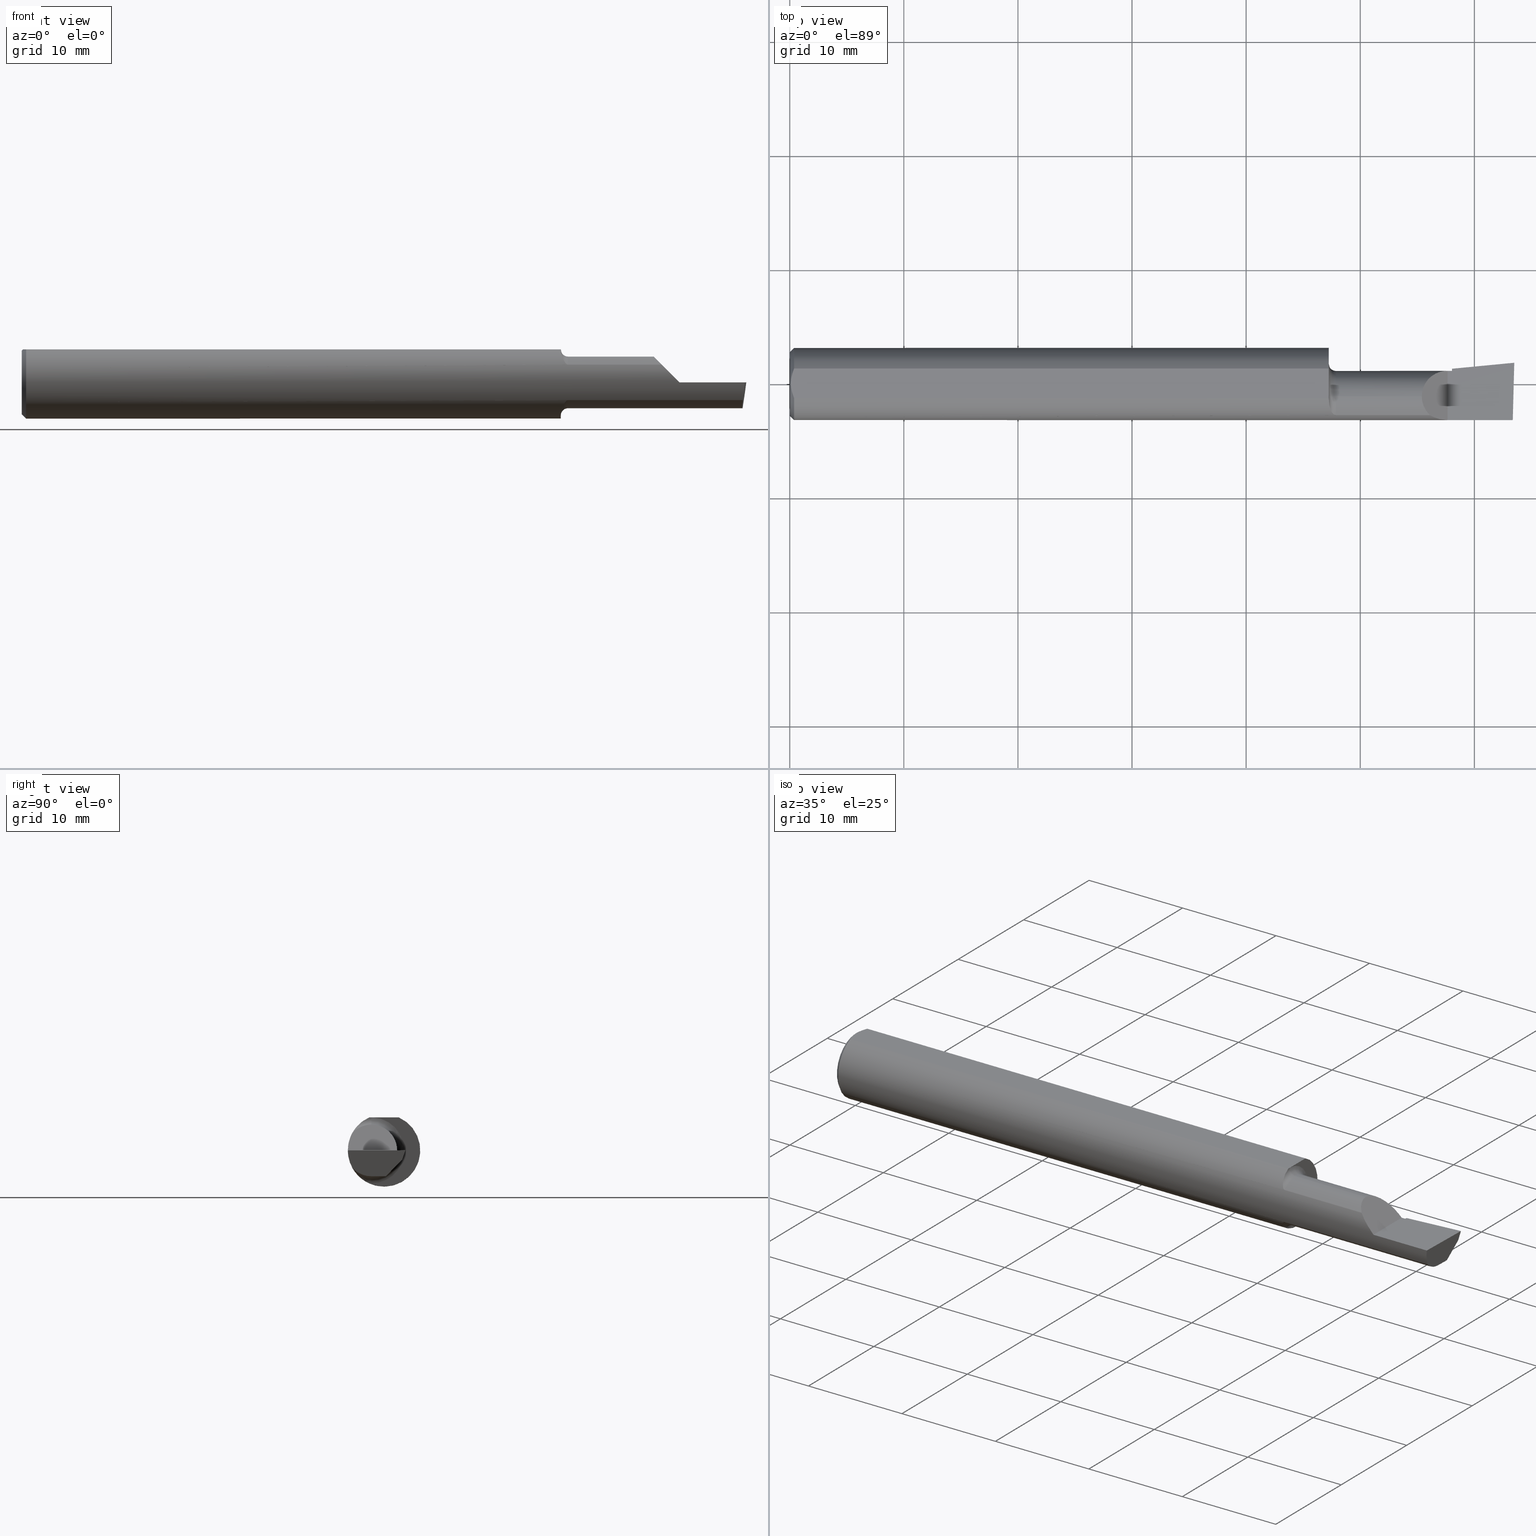
[diagram: canonical four-view strip — front | top / right | iso, engineering-drawing reading convention]
A machine part, canonical four-view strip (front | top / right | iso — engineering-drawing reading convention). The complete STEP part file that produces these views, byte-faithful:
ISO-10303-21;
HEADER;
FILE_DESCRIPTION (( 'STEP AP214' ),
    '1' );
FILE_NAME ('B200600.STEP',
    '2019-07-25T18:23:04',
    ( '' ),
    ( '' ),
    'SwSTEP 2.0',
    'SolidWorks 2018',
    '' );
FILE_SCHEMA (( 'AUTOMOTIVE_DESIGN' ));
ENDSEC;

DATA;
#1 = ADVANCED_FACE ( 'NONE', ( #624 ), #372, .T. ) ;
#2 = DIRECTION ( 'NONE',  ( 0.0000000000000000000, 0.0000000000000000000, 1.000000000000000000 ) ) ;
#3 = EDGE_LOOP ( 'NONE', ( #512, #264, #67, #202, #160 ) ) ;
#4 = ORIENTED_EDGE ( 'NONE', *, *, #208, .F. ) ;
#5 = EDGE_CURVE ( 'NONE', #201, #537, #477, .T. ) ;
#6 = AXIS2_PLACEMENT_3D ( 'NONE', #583, #472, #366 ) ;
#7 = LINE ( 'NONE', #77, #170 ) ;
#8 = CARTESIAN_POINT ( 'NONE',  ( 1.872671163500630787, -0.1022596512740081426, 0.07170602318513177864 ) ) ;
#9 = EDGE_LOOP ( 'NONE', ( #272, #417, #402, #261, #117 ) ) ;
#10 = CARTESIAN_POINT ( 'NONE',  ( 1.860398955714088309, -0.06414339738381671929, 0.1073503907433057680 ) ) ;
#11 = EDGE_CURVE ( 'NONE', #537, #701, #73, .T. ) ;
#12 = ORIENTED_EDGE ( 'NONE', *, *, #214, .T. ) ;
#13 = DIRECTION ( 'NONE',  ( -1.000000000000000000, -0.0000000000000000000, -0.0000000000000000000 ) ) ;
#14 = EDGE_LOOP ( 'NONE', ( #129, #27, #547, #354 ) ) ;
#15 = FACE_OUTER_BOUND ( 'NONE', #400, .T. ) ;
#16 = ADVANCED_FACE ( 'NONE', ( #384 ), #110, .F. ) ;
#17 = PLANE ( 'NONE',  #625 ) ;
#18 = EDGE_CURVE ( 'NONE', #179, #134, #463, .T. ) ;
#19 =( CONVERSION_BASED_UNIT ( 'INCH', #152 ) LENGTH_UNIT ( ) NAMED_UNIT ( #616 ) );
#20 = ADVANCED_FACE ( 'NONE', ( #577 ), #621, .F. ) ;
#21 = PLANE ( 'NONE',  #197 ) ;
#22 = ORIENTED_EDGE ( 'NONE', *, *, #81, .T. ) ;
#23 = PRODUCT_DEFINITION_SHAPE ( 'NONE', 'NONE',  #499 ) ;
#24 = DIRECTION ( 'NONE',  ( 0.0000000000000000000, 0.0000000000000000000, 1.000000000000000000 ) ) ;
#25 = FACE_OUTER_BOUND ( 'NONE', #681, .T. ) ;
#26 = AXIS2_PLACEMENT_3D ( 'NONE', #498, #722, #149 ) ;
#27 = ORIENTED_EDGE ( 'NONE', *, *, #428, .F. ) ;
#28 = CARTESIAN_POINT ( 'NONE',  ( 0.0000000000000000000, 0.05124158467494922820, 0.1138500000000000345 ) ) ;
#29 = CARTESIAN_POINT ( 'NONE',  ( 0.01499999999999999424, 0.0000000000000000000, -0.1248500000000000026 ) ) ;
#30 = EDGE_CURVE ( 'NONE', #70, #323, #210, .T. ) ;
#31 = CARTESIAN_POINT ( 'NONE',  ( 2.180849999999999511, -0.04399999999999999745, 0.08914999999999995151 ) ) ;
#32 = AXIS2_PLACEMENT_3D ( 'NONE', #427, #695, #478 ) ;
#33 = VERTEX_POINT ( 'NONE', #706 ) ;
#34 = CARTESIAN_POINT ( 'NONE',  ( 1.860001800064804423, -0.04399999999999999745, 0.1138500000000000345 ) ) ;
#35 = CARTESIAN_POINT ( 'NONE',  ( 2.180849999999999067, 0.008222860914438554630, 0.08914999999999995151 ) ) ;
#36 = SURFACE_STYLE_FILL_AREA ( #395 ) ;
#37 = CARTESIAN_POINT ( 'NONE',  ( 0.0000000000000000000, -0.05124158467494919350, 0.1138500000000000345 ) ) ;
#38 = CARTESIAN_POINT ( 'NONE',  ( 2.208790356734260829, -0.1088159090909091575, 0.06120964326573868214 ) ) ;
#39 = DIRECTION ( 'NONE',  ( -0.09584575252020946512, 0.9953961983671801850, 8.497722210657548999E-17 ) ) ;
#40 = DIRECTION ( 'NONE',  ( -0.1053106618241858444, -0.6976485211320166968, -0.7086580314005210823 ) ) ;
#41 = PLANE ( 'NONE',  #154 ) ;
#42 = CARTESIAN_POINT ( 'NONE',  ( 1.885000000000000009, -0.04399999999999999745, 0.0000000000000000000 ) ) ;
#43 = CARTESIAN_POINT ( 'NONE',  ( 1.860001800064805089, -0.04262160478489884080, 0.1138500000000000761 ) ) ;
#44 = LINE ( 'NONE', #448, #335 ) ;
#45 = DIRECTION ( 'NONE',  ( 0.0000000000000000000, 0.0000000000000000000, 1.000000000000000000 ) ) ;
#46 = LINE ( 'NONE', #166, #505 ) ;
#47 = APPLICATION_CONTEXT ( 'automotive_design' ) ;
#48 = AXIS2_PLACEMENT_3D ( 'NONE', #652, #657, #262 ) ;
#49 = CARTESIAN_POINT ( 'NONE',  ( 2.285000000000000142, -0.007196927245378875737, -0.08914999999999999314 ) ) ;
#50 = DIRECTION ( 'NONE',  ( 0.06658005426110483183, -0.6914603011188220627, -0.7193398003386550776 ) ) ;
#51 = CARTESIAN_POINT ( 'NONE',  ( 2.270000000000000018, 0.04514999999999985691, 2.816687638038912303E-17 ) ) ;
#52 = SURFACE_STYLE_USAGE ( .BOTH. , #220 ) ;
#53 = ORIENTED_EDGE ( 'NONE', *, *, #231, .F. ) ;
#54 = ORIENTED_EDGE ( 'NONE', *, *, #415, .F. ) ;
#55 = ORIENTED_EDGE ( 'NONE', *, *, #441, .T. ) ;
#56 = LINE ( 'NONE', #601, #111 ) ;
#57 =( NAMED_UNIT ( * ) PLANE_ANGLE_UNIT ( ) SI_UNIT ( $, .RADIAN. ) );
#58 = LINE ( 'NONE', #450, #615 ) ;
#59 = DIRECTION ( 'NONE',  ( -1.000000000000000000, -0.0000000000000000000, -0.0000000000000000000 ) ) ;
#60 = DIRECTION ( 'NONE',  ( 1.000000000000000000, 0.0000000000000000000, 0.0000000000000000000 ) ) ;
#61 = AXIS2_PLACEMENT_3D ( 'NONE', #420, #80, #479 ) ;
#62 = DIRECTION ( 'NONE',  ( 0.0000000000000000000, -1.000000000000000000, 1.464745492742491612E-16 ) ) ;
#63 = CARTESIAN_POINT ( 'NONE',  ( 0.01499999999999999424, 0.0000000000000000000, 0.0000000000000000000 ) ) ;
#64 = EDGE_CURVE ( 'NONE', #466, #461, #153, .T. ) ;
#65 = ORIENTED_EDGE ( 'NONE', *, *, #415, .T. ) ;
#66 = CARTESIAN_POINT ( 'NONE',  ( 0.004000000000000278506, 1.406179932551309785E-17, 0.1138500000000000345 ) ) ;
#67 = ORIENTED_EDGE ( 'NONE', *, *, #630, .F. ) ;
#68 = CARTESIAN_POINT ( 'NONE',  ( 0.01168016970778672399, -0.04315282601121772643, 0.1138500000000000206 ) ) ;
#69 = CARTESIAN_POINT ( 'NONE',  ( 1.866367198475050726, -0.09170680217278601165, 0.08501141308632326199 ) ) ;
#70 = VERTEX_POINT ( 'NONE', #38 ) ;
#71 = EDGE_LOOP ( 'NONE', ( #421, #276, #651, #285, #54, #658, #628 ) ) ;
#72 = AXIS2_PLACEMENT_3D ( 'NONE', #212, #207, #606 ) ;
#73 = CIRCLE ( 'NONE', #548, 0.08914999999999999314 ) ;
#74 = ADVANCED_FACE ( 'NONE', ( #337 ), #88, .F. ) ;
#75 = CARTESIAN_POINT ( 'NONE',  ( 0.01499999999999999424, 0.0000000000000000000, 0.0000000000000000000 ) ) ;
#76 = VERTEX_POINT ( 'NONE', #87 ) ;
#77 = CARTESIAN_POINT ( 'NONE',  ( 2.284439022446591583, 0.04256520776931346783, -0.03200000000000000067 ) ) ;
#78 = VERTEX_POINT ( 'NONE', #637 ) ;
#79 = VERTEX_POINT ( 'NONE', #321 ) ;
#80 = DIRECTION ( 'NONE',  ( -0.0000000000000000000, 1.000000000000000000, 1.224646799147353207E-16 ) ) ;
#81 = EDGE_CURVE ( 'NONE', #344, #233, #348, .T. ) ;
#82 = DIRECTION ( 'NONE',  ( -1.000000000000000000, 0.0000000000000000000, -0.0000000000000000000 ) ) ;
#83 = B_SPLINE_CURVE_WITH_KNOTS ( 'NONE', 3,
 ( #49, #100, #98, #155 ),
 .UNSPECIFIED., .F., .F.,
 ( 4, 4 ),
 ( 0.01374225265540627433, 0.01385046277627812600 ),
 .UNSPECIFIED. ) ;
#84 = DIRECTION ( 'NONE',  ( -1.000000000000000000, 0.0000000000000000000, 4.194046792260684025E-16 ) ) ;
#85 = CARTESIAN_POINT ( 'NONE',  ( 2.084999999999999964, -0.1088159090909091853, -0.06120964326573867520 ) ) ;
#86 = ORIENTED_EDGE ( 'NONE', *, *, #318, .F. ) ;
#87 = CARTESIAN_POINT ( 'NONE',  ( 2.285000000000000142, -0.007196927245378875737, -0.08914999999999999314 ) ) ;
#88 = TOROIDAL_SURFACE ( 'NONE', #364, 0.1141499999999999460, 0.02500000000000007425 ) ;
#89 = CARTESIAN_POINT ( 'NONE',  ( 2.270000000000000018, 0.04514999999999985691, 2.816687638038912303E-17 ) ) ;
#90 = DIRECTION ( 'NONE',  ( -1.000000000000000000, -0.0000000000000000000, -0.0000000000000000000 ) ) ;
#91 = EDGE_LOOP ( 'NONE', ( #360, #132, #274, #640, #671, #296 ) ) ;
#92 = DIRECTION ( 'NONE',  ( -0.7071067811865507924, 0.0000000000000000000, 0.7071067811865443531 ) ) ;
#93 = EDGE_LOOP ( 'NONE', ( #619, #311, #392, #293, #473, #523, #408, #304, #314, #435, #4, #575 ) ) ;
#94 = FACE_OUTER_BOUND ( 'NONE', #572, .T. ) ;
#95 = EDGE_CURVE ( 'NONE', #633, #689, #326, .T. ) ;
#96 = CONICAL_SURFACE ( 'NONE', #146, 0.1248500000000000026, 0.7853981633974602694 ) ;
#97 = VECTOR ( 'NONE', #546, 39.37007874015748143 ) ;
#98 = CARTESIAN_POINT ( 'NONE',  ( 2.287753291311064086, -0.006506358606457698576, -0.08914999999999999314 ) ) ;
#99 = EDGE_LOOP ( 'NONE', ( #442, #493 ) ) ;
#100 = CARTESIAN_POINT ( 'NONE',  ( 2.286376142476870488, -0.006849672022903474482, -0.08914999999999999314 ) ) ;
#101 = EDGE_LOOP ( 'NONE', ( #367, #587, #244, #65, #12, #119 ) ) ;
#102 = DIRECTION ( 'NONE',  ( 1.000000000000000000, 0.0000000000000000000, 0.0000000000000000000 ) ) ;
#103 = CARTESIAN_POINT ( 'NONE',  ( 2.285000000000000142, 0.03673923312416821352, -0.05275760512668437735 ) ) ;
#104 = LINE ( 'NONE', #218, #534 ) ;
#105 = EDGE_CURVE ( 'NONE', #33, #78, #279, .T. ) ;
#106 =( NAMED_UNIT ( * ) SI_UNIT ( $, .STERADIAN. ) SOLID_ANGLE_UNIT ( ) );
#107 = STYLED_ITEM ( 'NONE', ( #719 ), #521 ) ;
#108 = CARTESIAN_POINT ( 'NONE',  ( 1.859999999999999876, 0.05124158467494921432, 0.1138500000000000206 ) ) ;
#109 = CARTESIAN_POINT ( 'NONE',  ( 0.0000000000000000000, 0.0000000000000000000, 0.0000000000000000000 ) ) ;
#110 = PLANE ( 'NONE',  #196 ) ;
#111 = VECTOR ( 'NONE', #327, 39.37007874015748854 ) ;
#112 = AXIS2_PLACEMENT_3D ( 'NONE', #42, #339, #211 ) ;
#113 = DIRECTION ( 'NONE',  ( 1.000000000000000000, 0.0000000000000000000, 0.0000000000000000000 ) ) ;
#114 = DIRECTION ( 'NONE',  ( -1.000000000000000000, -0.0000000000000000000, -0.0000000000000000000 ) ) ;
#115 = EDGE_CURVE ( 'NONE', #323, #201, #724, .T. ) ;
#116 = ORIENTED_EDGE ( 'NONE', *, *, #526, .F. ) ;
#117 = ORIENTED_EDGE ( 'NONE', *, *, #622, .F. ) ;
#118 = LINE ( 'NONE', #632, #163 ) ;
#119 = ORIENTED_EDGE ( 'NONE', *, *, #638, .F. ) ;
#120 = CARTESIAN_POINT ( 'NONE',  ( 2.270000000000000018, -0.1248500000000000165, 2.816687638038912303E-17 ) ) ;
#121 = CARTESIAN_POINT ( 'NONE',  ( 1.859999999999999876, 0.07014999999999994851, 0.0000000000000000000 ) ) ;
#122 = ORIENTED_EDGE ( 'NONE', *, *, #151, .T. ) ;
#123 = EDGE_CURVE ( 'NONE', #701, #224, #559, .T. ) ;
#124 = ORIENTED_EDGE ( 'NONE', *, *, #175, .F. ) ;
#125 = CARTESIAN_POINT ( 'NONE',  ( 2.491543817870046862, -0.2497785670779703315, -6.474963748791635999E-17 ) ) ;
#126 = FACE_OUTER_BOUND ( 'NONE', #101, .T. ) ;
#127 = EDGE_CURVE ( 'NONE', #238, #192, #697, .T. ) ;
#128 = SURFACE_SIDE_STYLE ('',( #307 ) ) ;
#129 = ORIENTED_EDGE ( 'NONE', *, *, #30, .F. ) ;
#130 = EDGE_LOOP ( 'NONE', ( #413, #22, #194, #620, #225 ) ) ;
#131 = AXIS2_PLACEMENT_3D ( 'NONE', #677, #573, #306 ) ;
#132 = ORIENTED_EDGE ( 'NONE', *, *, #535, .F. ) ;
#133 = CIRCLE ( 'NONE', #554, 0.1141499999999999460 ) ;
#134 = VERTEX_POINT ( 'NONE', #29 ) ;
#135 = DIRECTION ( 'NONE',  ( 0.7071067811865390240, 8.659560562355036396E-17, 0.7071067811865560104 ) ) ;
#136 = EDGE_CURVE ( 'NONE', #564, #238, #516, .T. ) ;
#137 = CARTESIAN_POINT ( 'NONE',  ( 2.285000000000000142, 0.05244785463753253579, 9.802155642165059035E-16 ) ) ;
#138 = PRESENTATION_LAYER_ASSIGNMENT (  '', '', ( #107 ) ) ;
#139 = CARTESIAN_POINT ( 'NONE',  ( 1.859999999999999876, -0.03572957074874710121, 0.1138500000000000345 ) ) ;
#140 = VERTEX_POINT ( 'NONE', #137 ) ;
#141 = CARTESIAN_POINT ( 'NONE',  ( 1.885000000000000009, -0.1088159090909094073, -0.06120964326573841152 ) ) ;
#142 = VERTEX_POINT ( 'NONE', #608 ) ;
#143 = CARTESIAN_POINT ( 'NONE',  ( 2.285000000000000142, -0.2500000000000000555, 2.187580619199813988E-17 ) ) ;
#144 = CARTESIAN_POINT ( 'NONE',  ( 4.111069666048746882E-31, -0.1248499999999999888, 9.802154982235641300E-16 ) ) ;
#145 = CARTESIAN_POINT ( 'NONE',  ( 1.878584160803692171, -0.1072016464447192174, -0.06400548237000602825 ) ) ;
#146 = AXIS2_PLACEMENT_3D ( 'NONE', #63, #171, #618 ) ;
#147 = CARTESIAN_POINT ( 'NONE',  ( 2.294677963759321315, -0.06377026344359248977, -0.08914999999999999314 ) ) ;
#148 = ORIENTED_EDGE ( 'NONE', *, *, #241, .F. ) ;
#149 = DIRECTION ( 'NONE',  ( 0.0000000000000000000, 0.0000000000000000000, -1.000000000000000000 ) ) ;
#150 = CONICAL_SURFACE ( 'NONE', #578, 0.09644785463752904298, 0.09599310885968871665 ) ;
#151 = EDGE_CURVE ( 'NONE', #140, #468, #104, .T. ) ;
#152 = LENGTH_MEASURE_WITH_UNIT ( LENGTH_MEASURE( 0.02539999999999999897 ), #190 );
#153 = CIRCLE ( 'NONE', #387, 0.02500000000000007425 ) ;
#154 = AXIS2_PLACEMENT_3D ( 'NONE', #712, #437, #92 ) ;
#155 = CARTESIAN_POINT ( 'NONE',  ( 2.289131370391417342, -0.006166688875843243448, -0.08914999999999999314 ) ) ;
#156 = CARTESIAN_POINT ( 'NONE',  ( 2.284999999999997478, 0.03673923312417560344, -0.03806087642519848796 ) ) ;
#157 = ORIENTED_EDGE ( 'NONE', *, *, #127, .T. ) ;
#158 = ORIENTED_EDGE ( 'NONE', *, *, #5, .T. ) ;
#159 = DIRECTION ( 'NONE',  ( 0.0000000000000000000, 0.0000000000000000000, -1.000000000000000000 ) ) ;
#160 = ORIENTED_EDGE ( 'NONE', *, *, #167, .F. ) ;
#161 = FACE_OUTER_BOUND ( 'NONE', #482, .T. ) ;
#162 = PRODUCT_DEFINITION_CONTEXT ( 'detailed design', #664, 'design' ) ;
#163 = VECTOR ( 'NONE', #636, 39.37007874015748854 ) ;
#164 = EDGE_CURVE ( 'NONE', #305, #76, #257, .T. ) ;
#165 = MECHANICAL_DESIGN_GEOMETRIC_PRESENTATION_REPRESENTATION (  '', ( #107 ), #517 ) ;
#166 = CARTESIAN_POINT ( 'NONE',  ( 2.270000000000000018, -0.2500000000000000555, 2.816687638038912303E-17 ) ) ;
#167 = EDGE_CURVE ( 'NONE', #224, #238, #634, .T. ) ;
#168 = ORIENTED_EDGE ( 'NONE', *, *, #585, .T. ) ;
#169 = CARTESIAN_POINT ( 'NONE',  ( 0.01499999999999999424, 0.05124158467494922820, 0.1138500000000000345 ) ) ;
#170 = VECTOR ( 'NONE', #424, 39.37007874015748854 ) ;
#171 = DIRECTION ( 'NONE',  ( 1.000000000000000000, 0.0000000000000000000, 0.0000000000000000000 ) ) ;
#172 = ORIENTED_EDGE ( 'NONE', *, *, #164, .F. ) ;
#173 = EDGE_CURVE ( 'NONE', #530, #70, #497, .T. ) ;
#174 = CARTESIAN_POINT ( 'NONE',  ( 0.005037769558486251270, -0.01754148797401016216, 0.1138500000000000206 ) ) ;
#175 = EDGE_CURVE ( 'NONE', #305, #142, #299, .T. ) ;
#176 = EDGE_LOOP ( 'NONE', ( #199, #718, #116, #53, #382, #610, #253 ) ) ;
#177 =( GEOMETRIC_REPRESENTATION_CONTEXT ( 3 ) GLOBAL_UNCERTAINTY_ASSIGNED_CONTEXT ( ( #394 ) ) GLOBAL_UNIT_ASSIGNED_CONTEXT ( ( #558, #340, #106 ) ) REPRESENTATION_CONTEXT ( 'NONE', 'WORKASPACE' ) );
#178 = CARTESIAN_POINT ( 'NONE',  ( 1.874298474000562376, -0.1041086701288378991, 0.06897617952030507538 ) ) ;
#179 = VERTEX_POINT ( 'NONE', #267 ) ;
#180 = CIRCLE ( 'NONE', #72, 0.1098499999999996424 ) ;
#181 = CARTESIAN_POINT ( 'NONE',  ( 0.004000000000000249016, -0.008832088689467585546, 0.1138500000000000484 ) ) ;
#182 = CARTESIAN_POINT ( 'NONE',  ( 1.877431632364402914, -0.1064782986023078554, 0.06520809716638645281 ) ) ;
#183 = EDGE_LOOP ( 'NONE', ( #589, #449, #124, #254 ) ) ;
#184 = VECTOR ( 'NONE', #280, 39.37007874015748143 ) ;
#185 = CARTESIAN_POINT ( 'NONE',  ( 2.285000000000000142, 0.05244785463752904553, 0.0000000000000000000 ) ) ;
#186 = CYLINDRICAL_SURFACE ( 'NONE', #6, 0.08914999999999995151 ) ;
#187 = VERTEX_POINT ( 'NONE', #156 ) ;
#188 = B_SPLINE_CURVE_WITH_KNOTS ( 'NONE', 3,
 ( #670, #68, #464, #174, #181, #579 ),
 .UNSPECIFIED., .F., .F.,
 ( 4, 2, 4 ),
 ( 0.0009713770995563920409, 0.001637314107522508866, 0.002303251115488625690 ),
 .UNSPECIFIED. ) ;
#189 = AXIS2_PLACEMENT_3D ( 'NONE', #75, #237, #629 ) ;
#190 =( LENGTH_UNIT ( ) NAMED_UNIT ( * ) SI_UNIT ( $, .METRE. ) );
#191 = CARTESIAN_POINT ( 'NONE',  ( 1.859999999999999654, -0.06435233443826811339, -0.1079743783864397511 ) ) ;
#192 = VERTEX_POINT ( 'NONE', #716 ) ;
#193 = ORIENTED_EDGE ( 'NONE', *, *, #115, .T. ) ;
#194 = ORIENTED_EDGE ( 'NONE', *, *, #474, .F. ) ;
#195 = CIRCLE ( 'NONE', #714, 0.1098499999999996424 ) ;
#196 = AXIS2_PLACEMENT_3D ( 'NONE', #511, #676, #352 ) ;
#197 = AXIS2_PLACEMENT_3D ( 'NONE', #185, #82, #375 ) ;
#198 = DIRECTION ( 'NONE',  ( 0.0000000000000000000, -0.2936076258024063468, -0.9559260233253795702 ) ) ;
#199 = ORIENTED_EDGE ( 'NONE', *, *, #585, .F. ) ;
#200 = CARTESIAN_POINT ( 'NONE',  ( 1.872652750757541673, -0.1022351105670218224, -0.07173965961731906815 ) ) ;
#201 = VERTEX_POINT ( 'NONE', #51 ) ;
#202 = ORIENTED_EDGE ( 'NONE', *, *, #136, .T. ) ;
#203 = DIRECTION ( 'NONE',  ( 0.0000000000000000000, 0.2936076258024063468, 0.9559260233253795702 ) ) ;
#204 = LINE ( 'NONE', #147, #524 ) ;
#205 = CYLINDRICAL_SURFACE ( 'NONE', #411, 0.08914999999999995151 ) ;
#206 = VECTOR ( 'NONE', #555, 39.37007874015748143 ) ;
#207 = DIRECTION ( 'NONE',  ( -1.000000000000000000, -0.0000000000000000000, -0.0000000000000000000 ) ) ;
#208 = EDGE_CURVE ( 'NONE', #192, #702, #525, .T. ) ;
#209 = DIRECTION ( 'NONE',  ( 1.000000000000000000, 0.0000000000000000000, 0.0000000000000000000 ) ) ;
#210 =( BOUNDED_CURVE ( )  B_SPLINE_CURVE ( 3, ( #644, #325, #438, #31 ),
 .UNSPECIFIED., .F., .T. ) 
 B_SPLINE_CURVE_WITH_KNOTS ( ( 4, 4 ),
 ( 5.469179596148852518, 6.283185307179586232 ),
 .UNSPECIFIED. ) 
 CURVE ( )  GEOMETRIC_REPRESENTATION_ITEM ( )  RATIONAL_B_SPLINE_CURVE ( ( 1.000000000000000000, 0.9455409277260482526, 0.9455409277260482526, 1.000000000000000000 ) ) 
 REPRESENTATION_ITEM ( '' )  );
#211 = DIRECTION ( 'NONE',  ( 0.0000000000000000000, 0.0000000000000000000, 1.000000000000000000 ) ) ;
#212 = CARTESIAN_POINT ( 'NONE',  ( 0.0000000000000000000, 0.0000000000000000000, 0.0000000000000000000 ) ) ;
#213 = EDGE_LOOP ( 'NONE', ( #556, #574, #86, #698, #193, #158 ) ) ;
#214 = EDGE_CURVE ( 'NONE', #76, #142, #83, .T. ) ;
#215 =( LENGTH_UNIT ( ) NAMED_UNIT ( * ) SI_UNIT ( $, .METRE. ) );
#216 = TOROIDAL_SURFACE ( 'NONE', #112, 0.1141499999999999460, 0.02500000000000007425 ) ;
#217 = AXIS2_PLACEMENT_3D ( 'NONE', #349, #561, #605 ) ;
#218 = CARTESIAN_POINT ( 'NONE',  ( 1.283350732061822486, -0.04399999999999999745, 4.419721961086355934E-16 ) ) ;
#219 = ADVANCED_FACE ( 'NONE', ( #317 ), #216, .F. ) ;
#220 = SURFACE_SIDE_STYLE ('',( #36 ) ) ;
#221 = PLANE ( 'NONE',  #268 ) ;
#222 = ADVANCED_BREP_SHAPE_REPRESENTATION ( 'B200600', ( #521, #471 ), #177 ) ;
#223 = CARTESIAN_POINT ( 'NONE',  ( 0.0000000000000000000, 0.0000000000000000000, 0.0000000000000000000 ) ) ;
#224 = VERTEX_POINT ( 'NONE', #663 ) ;
#225 = ORIENTED_EDGE ( 'NONE', *, *, #594, .T. ) ;
#226 = ORIENTED_EDGE ( 'NONE', *, *, #370, .T. ) ;
#227 = CARTESIAN_POINT ( 'NONE',  ( 2.289068894429393097, -0.005517851202293930571, -0.1900000000000000577 ) ) ;
#228 = LINE ( 'NONE', #125, #557 ) ;
#229 = FACE_OUTER_BOUND ( 'NONE', #183, .T. ) ;
#230 = DIRECTION ( 'NONE',  ( 0.02617694830787453339, 0.9996573249755572599, -1.081567693920917438E-17 ) ) ;
#231 = EDGE_CURVE ( 'NONE', #654, #179, #252, .T. ) ;
#232 = DIRECTION ( 'NONE',  ( 0.0000000000000000000, 0.0000000000000000000, 1.000000000000000000 ) ) ;
#233 = VERTEX_POINT ( 'NONE', #571 ) ;
#234 = PRESENTATION_STYLE_ASSIGNMENT (( #52 ) ) ;
#235 = VERTEX_POINT ( 'NONE', #457 ) ;
#236 = COLOUR_RGB ( '',0.7529411764705882248, 0.7529411764705882248, 0.7529411764705882248 ) ;
#237 = DIRECTION ( 'NONE',  ( 1.000000000000000000, 0.0000000000000000000, 0.0000000000000000000 ) ) ;
#238 = VERTEX_POINT ( 'NONE', #515 ) ;
#239 = DIMENSIONAL_EXPONENTS ( 1.000000000000000000, 0.0000000000000000000, 0.0000000000000000000, 0.0000000000000000000, 0.0000000000000000000, 0.0000000000000000000, 0.0000000000000000000 ) ;
#240 = CARTESIAN_POINT ( 'NONE',  ( 2.495889740814595026, 0.06313196164346812633, -0.03132811651357121641 ) ) ;
#241 = EDGE_CURVE ( 'NONE', #530, #461, #645, .T. ) ;
#242 = ORIENTED_EDGE ( 'NONE', *, *, #241, .T. ) ;
#243 = AXIS2_PLACEMENT_3D ( 'NONE', #429, #381, #198 ) ;
#244 = ORIENTED_EDGE ( 'NONE', *, *, #552, .T. ) ;
#245 = LINE ( 'NONE', #37, #643 ) ;
#246 = CIRCLE ( 'NONE', #319, 0.1248500000000000026 ) ;
#247 = VECTOR ( 'NONE', #40, 39.37007874015748854 ) ;
#248 = CARTESIAN_POINT ( 'NONE',  ( 0.0000000000000000000, -0.04399999999999999745, 0.0000000000000000000 ) ) ;
#249 = CARTESIAN_POINT ( 'NONE',  ( 2.500000000000000000, -0.2500000000000000555, -6.829619984160658046E-17 ) ) ;
#250 = PLANE ( 'NONE',  #334 ) ;
#251 = ORIENTED_EDGE ( 'NONE', *, *, #342, .T. ) ;
#252 = B_SPLINE_CURVE_WITH_KNOTS ( 'NONE', 3,
 ( #66, #288, #283, #350, #507, #169 ),
 .UNSPECIFIED., .F., .F.,
 ( 4, 2, 4 ),
 ( 0.002303251115488625690, 0.002969128157203607035, 0.003635005198918588379 ),
 .UNSPECIFIED. ) ;
#253 = ORIENTED_EDGE ( 'NONE', *, *, #446, .F. ) ;
#254 = ORIENTED_EDGE ( 'NONE', *, *, #674, .F. ) ;
#255 = CARTESIAN_POINT ( 'NONE',  ( 1.860001800064804423, -0.04399999999999999745, 0.1138500000000000345 ) ) ;
#256 = FACE_OUTER_BOUND ( 'NONE', #130, .T. ) ;
#257 = CIRCLE ( 'NONE', #470, 0.09644785463752904298 ) ;
#258 = EDGE_CURVE ( 'NONE', #78, #201, #46, .T. ) ;
#259 = CARTESIAN_POINT ( 'NONE',  ( 2.491962257089441746, 0.03748279299390201713, -0.05783569115290439905 ) ) ;
#260 = DIRECTION ( 'NONE',  ( -1.000000000000000000, -0.0000000000000000000, -0.0000000000000000000 ) ) ;
#261 = ORIENTED_EDGE ( 'NONE', *, *, #18, .T. ) ;
#262 = DIRECTION ( 'NONE',  ( 0.0000000000000000000, -1.000000000000000000, -8.537024980200821325E-17 ) ) ;
#263 = CARTESIAN_POINT ( 'NONE',  ( 0.0000000000000000000, -0.04399999999999998357, -0.08914999999999995151 ) ) ;
#264 = ORIENTED_EDGE ( 'NONE', *, *, #552, .F. ) ;
#265 = VECTOR ( 'NONE', #685, 39.37007874015748143 ) ;
#266 = PLANE ( 'NONE',  #607 ) ;
#267 = CARTESIAN_POINT ( 'NONE',  ( 0.01499999999999999424, 0.05124158467494922820, 0.1138500000000000345 ) ) ;
#268 = AXIS2_PLACEMENT_3D ( 'NONE', #227, #672, #404 ) ;
#269 = CARTESIAN_POINT ( 'NONE',  ( 1.885000000000000009, -0.04399999999999999745, 0.0000000000000000000 ) ) ;
#270 = B_SPLINE_CURVE_WITH_KNOTS ( 'NONE', 3,
 ( #255, #588, #373, #475, #308 ),
 .UNSPECIFIED., .F., .F.,
 ( 4, 1, 4 ),
 ( 0.001183372309461725802, 0.001275293521177760930, 0.001367214732893796058 ),
 .UNSPECIFIED. ) ;
#271 = MECHANICAL_DESIGN_GEOMETRIC_PRESENTATION_REPRESENTATION (  '', ( #302 ), #447 ) ;
#272 = ORIENTED_EDGE ( 'NONE', *, *, #291, .F. ) ;
#273 = CARTESIAN_POINT ( 'NONE',  ( 2.289131370391417342, -0.006166688875843243448, -0.08914999999999999314 ) ) ;
#274 = ORIENTED_EDGE ( 'NONE', *, *, #81, .F. ) ;
#275 = EDGE_CURVE ( 'NONE', #323, #461, #377, .T. ) ;
#276 = ORIENTED_EDGE ( 'NONE', *, *, #594, .F. ) ;
#277 = DIRECTION ( 'NONE',  ( -1.000000000000000000, -0.0000000000000000000, -0.0000000000000000000 ) ) ;
#278 = CONICAL_SURFACE ( 'NONE', #189, 0.1248500000000000026, 0.7853981633974602694 ) ;
#279 = LINE ( 'NONE', #144, #97 ) ;
#280 = DIRECTION ( 'NONE',  ( 0.0000000000000000000, 1.000000000000000000, 0.0000000000000000000 ) ) ;
#281 = CARTESIAN_POINT ( 'NONE',  ( 1.885000000000000009, -0.04399999999999999745, 0.0000000000000000000 ) ) ;
#282 = DIRECTION ( 'NONE',  ( 0.0000000000000000000, 0.0000000000000000000, -1.000000000000000000 ) ) ;
#283 = CARTESIAN_POINT ( 'NONE',  ( 0.005053359673950995161, 0.01761291720128071656, 0.1138500000000000484 ) ) ;
#284 = CARTESIAN_POINT ( 'NONE',  ( 0.01499999999999999424, 0.0000000000000000000, 0.0000000000000000000 ) ) ;
#285 = ORIENTED_EDGE ( 'NONE', *, *, #164, .T. ) ;
#286 = ORIENTED_EDGE ( 'NONE', *, *, #622, .T. ) ;
#287 = DIRECTION ( 'NONE',  ( 0.0000000000000000000, 0.0000000000000000000, 1.000000000000000000 ) ) ;
#288 = CARTESIAN_POINT ( 'NONE',  ( 0.004000000000000248149, 0.008831293378136255423, 0.1138500000000000345 ) ) ;
#289 = DIRECTION ( 'NONE',  ( 0.0000000000000000000, 0.0000000000000000000, 1.000000000000000000 ) ) ;
#290 = CARTESIAN_POINT ( 'NONE',  ( 2.495801589480300287, 0.06291710817357476504, -0.03200000000000000761 ) ) ;
#291 = EDGE_CURVE ( 'NONE', #451, #235, #195, .T. ) ;
#292 = CARTESIAN_POINT ( 'NONE',  ( 2.500000000000000000, 0.1748500000000000609, 0.1138500000000000068 ) ) ;
#293 = ORIENTED_EDGE ( 'NONE', *, *, #428, .T. ) ;
#294 = ORIENTED_EDGE ( 'NONE', *, *, #208, .T. ) ;
#295 = CARTESIAN_POINT ( 'NONE',  ( 2.487716879513912627, -0.1088159090909091853, -0.06120964326573867520 ) ) ;
#296 = ORIENTED_EDGE ( 'NONE', *, *, #331, .F. ) ;
#297 = ORIENTED_EDGE ( 'NONE', *, *, #423, .T. ) ;
#298 = DIRECTION ( 'NONE',  ( 0.0000000000000000000, 1.000000000000000000, 8.537024980200821325E-17 ) ) ;
#299 =( BOUNDED_CURVE ( )  B_SPLINE_CURVE ( 3, ( #103, #330, #659, #273 ),
 .UNSPECIFIED., .F., .F. ) 
 B_SPLINE_CURVE_WITH_KNOTS ( ( 4, 4 ),
 ( 3.715324695526931897, 4.302525637907669953 ),
 .UNSPECIFIED. ) 
 CURVE ( )  GEOMETRIC_REPRESENTATION_ITEM ( )  RATIONAL_B_SPLINE_CURVE ( ( 1.000000000000000000, 0.9714720692997709239, 0.9714720692997709239, 1.000000000000000000 ) ) 
 REPRESENTATION_ITEM ( '' )  );
#300 = CARTESIAN_POINT ( 'NONE',  ( 0.01499999999999999424, 0.0000000000000000000, 0.0000000000000000000 ) ) ;
#301 = EDGE_CURVE ( 'NONE', #702, #633, #58, .T. ) ;
#302 = STYLED_ITEM ( 'NONE', ( #234 ), #222 ) ;
#303 = CARTESIAN_POINT ( 'NONE',  ( 2.248439214200177449, -0.1248500000000000026, 0.02156078579982230806 ) ) ;
#304 = ORIENTED_EDGE ( 'NONE', *, *, #370, .F. ) ;
#305 = VERTEX_POINT ( 'NONE', #617 ) ;
#306 = DIRECTION ( 'NONE',  ( 0.0000000000000000000, 0.0000000000000000000, 1.000000000000000000 ) ) ;
#307 = SURFACE_STYLE_FILL_AREA ( #310 ) ;
#308 = CARTESIAN_POINT ( 'NONE',  ( 1.860000097795984519, -0.05124158467554382895, 0.1138500000000000345 ) ) ;
#309 = ADVANCED_FACE ( 'NONE', ( #229 ), #221, .T. ) ;
#310 = FILL_AREA_STYLE ('',( #699 ) ) ;
#311 = ORIENTED_EDGE ( 'NONE', *, *, #331, .T. ) ;
#312 = ADVANCED_FACE ( 'NONE', ( #386 ), #96, .T. ) ;
#313 = PRODUCT_RELATED_PRODUCT_CATEGORY ( 'part', '', ( #486 ) ) ;
#314 = ORIENTED_EDGE ( 'NONE', *, *, #18, .F. ) ;
#315 = CARTESIAN_POINT ( 'NONE',  ( 2.227582158957104319, -0.1193864177600010984, 0.04241784104289508112 ) ) ;
#316 = LINE ( 'NONE', #539, #462 ) ;
#317 = FACE_OUTER_BOUND ( 'NONE', #459, .T. ) ;
#318 = EDGE_CURVE ( 'NONE', #461, #224, #362, .T. ) ;
#319 = AXIS2_PLACEMENT_3D ( 'NONE', #300, #13, #232 ) ;
#320 =( NAMED_UNIT ( * ) SI_UNIT ( $, .STERADIAN. ) SOLID_ANGLE_UNIT ( ) );
#321 = CARTESIAN_POINT ( 'NONE',  ( 0.01499999999999998730, -0.05124158467494919350, 0.1138500000000000345 ) ) ;
#322 = DIRECTION ( 'NONE',  ( -0.02617694830787454727, -0.9996573249755572599, -8.535148296544351486E-17 ) ) ;
#323 = VERTEX_POINT ( 'NONE', #728 ) ;
#324 = FACE_OUTER_BOUND ( 'NONE', #563, .T. ) ;
#325 = CARTESIAN_POINT ( 'NONE',  ( 2.190699866855738254, -0.09173194857106671540, 0.07930013314426070936 ) ) ;
#326 = CIRCLE ( 'NONE', #401, 0.1141499999999999460 ) ;
#327 = DIRECTION ( 'NONE',  ( 0.0000000000000000000, 0.6963153109074922131, 0.7177360153954950306 ) ) ;
#328 = CARTESIAN_POINT ( 'NONE',  ( 1.868397821753970067, -0.09628495161689394621, -0.07975604660947201163 ) ) ;
#329 = CARTESIAN_POINT ( 'NONE',  ( 2.285000000000000142, 0.05244785463753196680, -8.956639302125194492E-16 ) ) ;
#330 = CARTESIAN_POINT ( 'NONE',  ( 2.286008923699899054, 0.02626115987714458533, -0.06897064857157146622 ) ) ;
#331 = EDGE_CURVE ( 'NONE', #564, #33, #542, .T. ) ;
#332 = ORIENTED_EDGE ( 'NONE', *, *, #380, .T. ) ;
#333 = DIRECTION ( 'NONE',  ( 0.0000000000000000000, 0.0000000000000000000, 1.000000000000000000 ) ) ;
#334 = AXIS2_PLACEMENT_3D ( 'NONE', #249, #635, #84 ) ;
#335 = VECTOR ( 'NONE', #50, 39.37007874015748854 ) ;
#336 = LINE ( 'NONE', #240, #265 ) ;
#337 = FACE_OUTER_BOUND ( 'NONE', #341, .T. ) ;
#338 = CARTESIAN_POINT ( 'NONE',  ( 2.485982323393565174, -0.04399999999999999745, -0.08914999999999999314 ) ) ;
#339 = DIRECTION ( 'NONE',  ( -1.000000000000000000, -0.0000000000000000000, -0.0000000000000000000 ) ) ;
#340 =( NAMED_UNIT ( * ) PLANE_ANGLE_UNIT ( ) SI_UNIT ( $, .RADIAN. ) );
#341 = EDGE_LOOP ( 'NONE', ( #593, #433, #168, #353, #503 ) ) ;
#342 = EDGE_CURVE ( 'NONE', #705, #530, #476, .T. ) ;
#343 = DIRECTION ( 'NONE',  ( -1.000000000000000000, -0.0000000000000000000, -0.0000000000000000000 ) ) ;
#344 = VERTEX_POINT ( 'NONE', #290 ) ;
#345 = AXIS2_PLACEMENT_3D ( 'NONE', #269, #90, #333 ) ;
#346 = CARTESIAN_POINT ( 'NONE',  ( 1.885000000000000009, -0.04399999999999999745, 0.0000000000000000000 ) ) ;
#347 = CYLINDRICAL_SURFACE ( 'NONE', #217, 0.1248500000000000026 ) ;
#348 = LINE ( 'NONE', #259, #247 ) ;
#349 = CARTESIAN_POINT ( 'NONE',  ( 0.0000000000000000000, 0.0000000000000000000, 0.0000000000000000000 ) ) ;
#350 = CARTESIAN_POINT ( 'NONE',  ( 0.008876515511621064711, 0.03469031959364226453, 0.1138500000000000206 ) ) ;
#351 = EDGE_CURVE ( 'NONE', #79, #654, #188, .T. ) ;
#352 = DIRECTION ( 'NONE',  ( 0.1219104985252876944, 0.0000000000000000000, 0.9925410975618670362 ) ) ;
#353 = ORIENTED_EDGE ( 'NONE', *, *, #64, .T. ) ;
#354 = ORIENTED_EDGE ( 'NONE', *, *, #115, .F. ) ;
#355 = DIRECTION ( 'NONE',  ( 0.0000000000000000000, -1.464745492742491612E-16, -1.000000000000000000 ) ) ;
#356 = CARTESIAN_POINT ( 'NONE',  ( 0.0000000000000000000, -0.04399999999999999745, 0.08914999999999995151 ) ) ;
#357 = ORIENTED_EDGE ( 'NONE', *, *, #446, .T. ) ;
#358 = CARTESIAN_POINT ( 'NONE',  ( 1.861949480984350203, -0.07596136197082531405, 0.09933958580654494996 ) ) ;
#359 = CARTESIAN_POINT ( 'NONE',  ( 1.860007259122735679, -0.05787968516969619476, 0.1108623250892746270 ) ) ;
#360 = ORIENTED_EDGE ( 'NONE', *, *, #630, .T. ) ;
#361 = ORIENTED_EDGE ( 'NONE', *, *, #567, .T. ) ;
#362 = CIRCLE ( 'NONE', #131, 0.08914999999999993763 ) ;
#363 = CARTESIAN_POINT ( 'NONE',  ( 1.863123628621569328, -0.08156933505717120503, 0.09478144068341090578 ) ) ;
#364 = AXIS2_PLACEMENT_3D ( 'NONE', #434, #488, #480 ) ;
#365 = ADVANCED_FACE ( 'NONE', ( #666 ), #278, .T. ) ;
#366 = DIRECTION ( 'NONE',  ( 0.0000000000000000000, 0.0000000000000000000, 1.000000000000000000 ) ) ;
#367 = ORIENTED_EDGE ( 'NONE', *, *, #474, .T. ) ;
#368 = ORIENTED_EDGE ( 'NONE', *, *, #151, .F. ) ;
#369 = LINE ( 'NONE', #609, #485 ) ;
#370 = EDGE_CURVE ( 'NONE', #134, #79, #246, .T. ) ;
#371 = PLANE ( 'NONE',  #32 ) ;
#372 = CYLINDRICAL_SURFACE ( 'NONE', #410, 0.08914999999999995151 ) ;
#373 = CARTESIAN_POINT ( 'NONE',  ( 1.860001294887845269, -0.04762079988859416885, 0.1138500000000000484 ) ) ;
#374 = CARTESIAN_POINT ( 'NONE',  ( 1.859999999999999876, -0.04399999999999999745, 0.0000000000000000000 ) ) ;
#375 = DIRECTION ( 'NONE',  ( -0.0000000000000000000, 0.0000000000000000000, 1.000000000000000000 ) ) ;
#376 = ORIENTED_EDGE ( 'NONE', *, *, #5, .F. ) ;
#377 = LINE ( 'NONE', #356, #678 ) ;
#378 = CARTESIAN_POINT ( 'NONE',  ( 0.01499999999999999424, 0.0000000000000000000, -0.1248500000000000026 ) ) ;
#379 = CARTESIAN_POINT ( 'NONE',  ( 1.883136503623038083, -0.1088159090909093518, -0.06120964326573836989 ) ) ;
#380 = EDGE_CURVE ( 'NONE', #689, #192, #133, .T. ) ;
#381 = DIRECTION ( 'NONE',  ( 0.09165774897393338949, -0.9519021185660613282, 0.2923717047227306076 ) ) ;
#382 = ORIENTED_EDGE ( 'NONE', *, *, #351, .F. ) ;
#383 = VERTEX_POINT ( 'NONE', #467 ) ;
#384 = FACE_OUTER_BOUND ( 'NONE', #91, .T. ) ;
#385 = VECTOR ( 'NONE', #203, 39.37007874015748143 ) ;
#386 = FACE_OUTER_BOUND ( 'NONE', #602, .T. ) ;
#387 = AXIS2_PLACEMENT_3D ( 'NONE', #641, #549, #540 ) ;
#388 = CARTESIAN_POINT ( 'NONE',  ( 2.485942244485980002, -0.09173194857106682643, -0.07930013314426066773 ) ) ;
#389 =( LENGTH_UNIT ( ) NAMED_UNIT ( * ) SI_UNIT ( $, .METRE. ) );
#390 = EDGE_CURVE ( 'NONE', #468, #344, #336, .T. ) ;
#391 = ORIENTED_EDGE ( 'NONE', *, *, #351, .T. ) ;
#392 = ORIENTED_EDGE ( 'NONE', *, *, #105, .T. ) ;
#393 = VECTOR ( 'NONE', #298, 39.37007874015748143 ) ;
#394 = UNCERTAINTY_MEASURE_WITH_UNIT (LENGTH_MEASURE( 1.000000000000000082E-05 ), #558, 'distance_accuracy_value', 'NONE');
#395 = FILL_AREA_STYLE ('',( #398 ) ) ;
#396 = VECTOR ( 'NONE', #397, 39.37007874015748143 ) ;
#397 = DIRECTION ( 'NONE',  ( 1.000000000000000000, 0.0000000000000000000, 0.0000000000000000000 ) ) ;
#398 = FILL_AREA_STYLE_COLOUR ( '', #236 ) ;
#399 = DIMENSIONAL_EXPONENTS ( 1.000000000000000000, 0.0000000000000000000, 0.0000000000000000000, 0.0000000000000000000, 0.0000000000000000000, 0.0000000000000000000, 0.0000000000000000000 ) ;
#400 = EDGE_LOOP ( 'NONE', ( #294, #431, #612, #332 ) ) ;
#401 = AXIS2_PLACEMENT_3D ( 'NONE', #374, #491, #598 ) ;
#402 = ORIENTED_EDGE ( 'NONE', *, *, #231, .T. ) ;
#403 = DIRECTION ( 'NONE',  ( -1.000000000000000000, -0.0000000000000000000, -0.0000000000000000000 ) ) ;
#404 = DIRECTION ( 'NONE',  ( -0.09584575252020946512, 0.9953961983671801850, 0.0000000000000000000 ) ) ;
#405 = LINE ( 'NONE', #592, #655 ) ;
#406 = CARTESIAN_POINT ( 'NONE',  ( 4.111069666048746882E-31, 0.04514999999999994712, 9.802154982235641300E-16 ) ) ;
#407 =( BOUNDED_CURVE ( )  B_SPLINE_CURVE ( 3, ( #642, #388, #440, #708 ),
 .UNSPECIFIED., .F., .F. ) 
 B_SPLINE_CURVE_WITH_KNOTS ( ( 4, 4 ),
 ( 5.679229040429019548, 6.493234751459754150 ),
 .UNSPECIFIED. ) 
 CURVE ( )  GEOMETRIC_REPRESENTATION_ITEM ( )  RATIONAL_B_SPLINE_CURVE ( ( 1.000000000000000000, 0.9455409277260482526, 0.9455409277260482526, 1.000000000000000000 ) ) 
 REPRESENTATION_ITEM ( '' )  );
#408 = ORIENTED_EDGE ( 'NONE', *, *, #591, .T. ) ;
#409 = CARTESIAN_POINT ( 'NONE',  ( 1.881429951084914398, -0.1083820298415335281, 0.06198549150327717361 ) ) ;
#410 = AXIS2_PLACEMENT_3D ( 'NONE', #562, #403, #289 ) ;
#411 = AXIS2_PLACEMENT_3D ( 'NONE', #248, #639, #24 ) ;
#412 = CARTESIAN_POINT ( 'NONE',  ( 1.859999999999999876, -0.04399999999999999745, 0.0000000000000000000 ) ) ;
#413 = ORIENTED_EDGE ( 'NONE', *, *, #460, .T. ) ;
#414 = ORIENTED_EDGE ( 'NONE', *, *, #214, .F. ) ;
#415 = EDGE_CURVE ( 'NONE', #701, #76, #456, .T. ) ;
#416 = CARTESIAN_POINT ( 'NONE',  ( 1.868377233828254491, -0.09625857022060846369, 0.07979273349069959664 ) ) ;
#417 = ORIENTED_EDGE ( 'NONE', *, *, #489, .T. ) ;
#418 = ADVANCED_FACE ( 'NONE', ( #15 ), #17, .T. ) ;
#419 = CARTESIAN_POINT ( 'NONE',  ( 1.885000000000000009, -0.04399999999999999745, 0.08914999999999993763 ) ) ;
#420 = CARTESIAN_POINT ( 'NONE',  ( 1.885000000000000009, -0.04399999999999997663, -0.1141499999999999460 ) ) ;
#421 = ORIENTED_EDGE ( 'NONE', *, *, #567, .F. ) ;
#422 = ORIENTED_EDGE ( 'NONE', *, *, #390, .T. ) ;
#423 = EDGE_CURVE ( 'NONE', #689, #224, #603, .T. ) ;
#424 = DIRECTION ( 'NONE',  ( 0.9953961983671800740, 0.09584575252021032554, -0.0000000000000000000 ) ) ;
#425 = UNCERTAINTY_MEASURE_WITH_UNIT (LENGTH_MEASURE( 1.000000000000000082E-05 ), #19, 'distance_accuracy_value', 'NONE');
#426 = ORIENTED_EDGE ( 'NONE', *, *, #258, .F. ) ;
#427 = CARTESIAN_POINT ( 'NONE',  ( 2.284439022446591583, 0.04256520776931346783, -0.03200000000000000067 ) ) ;
#428 = EDGE_CURVE ( 'NONE', #78, #70, #660, .T. ) ;
#429 = CARTESIAN_POINT ( 'NONE',  ( 2.283501326855137847, 0.05230354882685425699, -6.829619984160658046E-17 ) ) ;
#430 = CARTESIAN_POINT ( 'NONE',  ( 2.217777139085560734, 0.04514999999999996100, 0.05222286091443856942 ) ) ;
#431 = ORIENTED_EDGE ( 'NONE', *, *, #301, .T. ) ;
#432 = CARTESIAN_POINT ( 'NONE',  ( 2.285000000000000142, 0.04514999999999999569, 9.802154982235647216E-16 ) ) ;
#433 = ORIENTED_EDGE ( 'NONE', *, *, #95, .F. ) ;
#434 = CARTESIAN_POINT ( 'NONE',  ( 1.885000000000000009, -0.04399999999999999745, 0.0000000000000000000 ) ) ;
#435 = ORIENTED_EDGE ( 'NONE', *, *, #526, .T. ) ;
#436 = VECTOR ( 'NONE', #711, 39.37007874015748143 ) ;
#437 = DIRECTION ( 'NONE',  ( -0.7071067811865443531, 0.0000000000000000000, -0.7071067811865507924 ) ) ;
#438 = CARTESIAN_POINT ( 'NONE',  ( 2.180849999999999067, -0.06888227343086721077, 0.08914999999999997926 ) ) ;
#439 = PRODUCT_DEFINITION_FORMATION_WITH_SPECIFIED_SOURCE ( 'ANY', '', #486, .NOT_KNOWN. ) ;
#440 = CARTESIAN_POINT ( 'NONE',  ( 2.485330758133041495, -0.06888227343086729404, -0.08914999999999995151 ) ) ;
#441 = EDGE_CURVE ( 'NONE', #33, #468, #228, .T. ) ;
#442 = ORIENTED_EDGE ( 'NONE', *, *, #730, .T. ) ;
#443 = ORIENTED_EDGE ( 'NONE', *, *, #64, .F. ) ;
#444 = ORIENTED_EDGE ( 'NONE', *, *, #693, .F. ) ;
#445 = UNCERTAINTY_MEASURE_WITH_UNIT (LENGTH_MEASURE( 1.000000000000000082E-05 ), #560, 'distance_accuracy_value', 'NONE');
#446 = EDGE_CURVE ( 'NONE', #466, #705, #270, .T. ) ;
#447 =( GEOMETRIC_REPRESENTATION_CONTEXT ( 3 ) GLOBAL_UNCERTAINTY_ASSIGNED_CONTEXT ( ( #445 ) ) GLOBAL_UNIT_ASSIGNED_CONTEXT ( ( #560, #57, #613 ) ) REPRESENTATION_CONTEXT ( 'NONE', 'WORKASPACE' ) );
#448 = CARTESIAN_POINT ( 'NONE',  ( 2.284439022446591583, 0.04256520776931346783, -0.03200000000000000067 ) ) ;
#449 = ORIENTED_EDGE ( 'NONE', *, *, #638, .T. ) ;
#450 = CARTESIAN_POINT ( 'NONE',  ( 1.859999999999999876, 0.1748500000000000609, 0.1138500000000000068 ) ) ;
#451 = VERTEX_POINT ( 'NONE', #691 ) ;
#452 = ADVANCED_FACE ( 'NONE', ( #256 ), #371, .F. ) ;
#453 = SHAPE_DEFINITION_REPRESENTATION ( #23, #222 ) ;
#454 = ORIENTED_EDGE ( 'NONE', *, *, #275, .T. ) ;
#455 = LENGTH_MEASURE_WITH_UNIT ( LENGTH_MEASURE( 0.02539999999999999897 ), #215 );
#456 = LINE ( 'NONE', #465, #393 ) ;
#457 = CARTESIAN_POINT ( 'NONE',  ( 0.0000000000000000000, 0.0000000000000000000, -0.1098499999999996424 ) ) ;
#458 = ADVANCED_FACE ( 'NONE', ( #623 ), #21, .T. ) ;
#459 = EDGE_LOOP ( 'NONE', ( #581, #297, #580, #157 ) ) ;
#460 = EDGE_CURVE ( 'NONE', #383, #344, #7, .T. ) ;
#461 = VERTEX_POINT ( 'NONE', #419 ) ;
#462 = VECTOR ( 'NONE', #135, 39.37007874015748143 ) ;
#463 = CIRCLE ( 'NONE', #667, 0.1248500000000000026 ) ;
#464 = CARTESIAN_POINT ( 'NONE',  ( 0.008889541251485982148, -0.03475029298915140868, 0.1138500000000000484 ) ) ;
#465 = CARTESIAN_POINT ( 'NONE',  ( 2.285000000000000142, -0.04399999999999999745, -0.08914999999999999314 ) ) ;
#466 = VERTEX_POINT ( 'NONE', #584 ) ;
#467 = CARTESIAN_POINT ( 'NONE',  ( 2.285000000000000142, 0.04261922376399134016, -0.03200000000000000761 ) ) ;
#468 = VERTEX_POINT ( 'NONE', #586 ) ;
#469 = ADVANCED_FACE ( 'NONE', ( #25 ), #250, .F. ) ;
#470 = AXIS2_PLACEMENT_3D ( 'NONE', #501, #713, #45 ) ;
#471 = AXIS2_PLACEMENT_3D ( 'NONE', #662, #669, #60 ) ;
#472 = DIRECTION ( 'NONE',  ( -1.000000000000000000, -0.0000000000000000000, -0.0000000000000000000 ) ) ;
#473 = ORIENTED_EDGE ( 'NONE', *, *, #173, .F. ) ;
#474 = EDGE_CURVE ( 'NONE', #684, #233, #118, .T. ) ;
#475 = CARTESIAN_POINT ( 'NONE',  ( 1.860000312090655639, -0.05003465832687906123, 0.1138500000000000761 ) ) ;
#476 = B_SPLINE_CURVE_WITH_KNOTS ( 'NONE', 3,
 ( #680, #359, #10, #358, #363, #69, #416, #8, #178, #182, #529, #409, #522, #688 ),
 .UNSPECIFIED., .F., .F.,
 ( 4, 2, 2, 2, 2, 2, 4 ),
 ( 4.804672440294539514E-07, 0.0005473133578846858718, 0.001094146248525342284, 0.001640979139165998912, 0.001914395584486326901, 0.002051103807146484933, 0.002187812029806642748 ),
 .UNSPECIFIED. ) ;
#477 = LINE ( 'NONE', #406, #604 ) ;
#478 = DIRECTION ( 'NONE',  ( 0.0000000000000000000, -0.6963153109074922131, -0.7177360153954950306 ) ) ;
#479 = DIRECTION ( 'NONE',  ( 0.0000000000000000000, 0.0000000000000000000, 1.000000000000000000 ) ) ;
#480 = DIRECTION ( 'NONE',  ( 0.0000000000000000000, 0.0000000000000000000, 1.000000000000000000 ) ) ;
#481 = CARTESIAN_POINT ( 'NONE',  ( 2.208790356734260829, -0.1088159090909091575, 0.06120964326573868214 ) ) ;
#482 = EDGE_LOOP ( 'NONE', ( #172, #665, #414 ) ) ;
#483 = ORIENTED_EDGE ( 'NONE', *, *, #460, .F. ) ;
#484 = PLANE ( 'NONE',  #243 ) ;
#485 = VECTOR ( 'NONE', #553, 39.37007874015748143 ) ;
#486 = PRODUCT ( 'B200600', 'B200600', '', ( #508 ) ) ;
#487 = CARTESIAN_POINT ( 'NONE',  ( 0.004000000000000278506, 1.406179932551309785E-17, 0.1138500000000000345 ) ) ;
#488 = DIRECTION ( 'NONE',  ( -1.000000000000000000, -0.0000000000000000000, -0.0000000000000000000 ) ) ;
#489 = EDGE_CURVE ( 'NONE', #451, #654, #316, .T. ) ;
#490 = CARTESIAN_POINT ( 'NONE',  ( 1.860001123980412840, -0.03986479258532020509, 0.1138500000000000484 ) ) ;
#491 = DIRECTION ( 'NONE',  ( -1.000000000000000000, -0.0000000000000000000, -0.0000000000000000000 ) ) ;
#492 = CARTESIAN_POINT ( 'NONE',  ( 1.885000000000000009, -0.1088159090909094073, 0.06120964326573841846 ) ) ;
#493 = ORIENTED_EDGE ( 'NONE', *, *, #291, .T. ) ;
#494 = LINE ( 'NONE', #378, #436 ) ;
#495 = VECTOR ( 'NONE', #322, 39.37007874015748854 ) ;
#496 = AXIS2_PLACEMENT_3D ( 'NONE', #281, #277, #653 ) ;
#497 = LINE ( 'NONE', #723, #396 ) ;
#498 = CARTESIAN_POINT ( 'NONE',  ( 1.859999999999999876, 0.0000000000000000000, 0.0000000000000000000 ) ) ;
#499 = PRODUCT_DEFINITION ( 'UNKNOWN', '', #439, #162 ) ;
#500 = CARTESIAN_POINT ( 'NONE',  ( 1.860000097795984519, -0.05124158467554382895, 0.1138500000000000345 ) ) ;
#501 = CARTESIAN_POINT ( 'NONE',  ( 2.285000000000000142, -0.04399999999999999745, 0.0000000000000000000 ) ) ;
#502 = CARTESIAN_POINT ( 'NONE',  ( 2.285000000000000142, -0.04399999999999999745, -0.08914999999999999314 ) ) ;
#503 = ORIENTED_EDGE ( 'NONE', *, *, #318, .T. ) ;
#504 = TOROIDAL_SURFACE ( 'NONE', #345, 0.1141499999999999460, 0.02500000000000007425 ) ;
#505 = VECTOR ( 'NONE', #565, 39.37007874015748143 ) ;
#506 = APPLICATION_PROTOCOL_DEFINITION ( 'draft international standard', 'automotive_design', 1998, #664 ) ;
#507 = CARTESIAN_POINT ( 'NONE',  ( 0.01166851468367537115, 0.04312442857252158507, 0.1138500000000000345 ) ) ;
#508 = PRODUCT_CONTEXT ( 'NONE', #47, 'mechanical' ) ;
#509 = DIRECTION ( 'NONE',  ( 0.0000000000000000000, 0.0000000000000000000, 1.000000000000000000 ) ) ;
#510 = ADVANCED_FACE ( 'NONE', ( #656 ), #186, .T. ) ;
#511 = CARTESIAN_POINT ( 'NONE',  ( 2.483804733702819956, -0.08775853831933842775, -0.09754990371710559049 ) ) ;
#512 = ORIENTED_EDGE ( 'NONE', *, *, #123, .F. ) ;
#513 = PRESENTATION_LAYER_ASSIGNMENT (  '', '', ( #302 ) ) ;
#514 = COLOUR_RGB ( '',0.7529411764705882248, 0.7529411764705882248, 0.7529411764705882248 ) ;
#515 = CARTESIAN_POINT ( 'NONE',  ( 1.885000000000000009, -0.1088159090909094073, -0.06120964326573841152 ) ) ;
#516 = LINE ( 'NONE', #85, #206 ) ;
#517 =( GEOMETRIC_REPRESENTATION_CONTEXT ( 3 ) GLOBAL_UNCERTAINTY_ASSIGNED_CONTEXT ( ( #425 ) ) GLOBAL_UNIT_ASSIGNED_CONTEXT ( ( #19, #590, #320 ) ) REPRESENTATION_CONTEXT ( 'NONE', 'WORKASPACE' ) );
#518 = DIRECTION ( 'NONE',  ( 0.0000000000000000000, 0.0000000000000000000, 1.000000000000000000 ) ) ;
#519 = CARTESIAN_POINT ( 'NONE',  ( 2.492166948426750128, -0.1248500000000000304, -0.02156078579982240867 ) ) ;
#520 = AXIS2_PLACEMENT_3D ( 'NONE', #346, #59, #509 ) ;
#521 = MANIFOLD_SOLID_BREP ( 'Extrude7', #690 ) ;
#522 = CARTESIAN_POINT ( 'NONE',  ( 1.883151621368557294, -0.1088159090914120469, 0.06120964326484486240 ) ) ;
#523 = ORIENTED_EDGE ( 'NONE', *, *, #342, .F. ) ;
#524 = VECTOR ( 'NONE', #39, 39.37007874015748143 ) ;
#525 = CIRCLE ( 'NONE', #26, 0.1248500000000000026 ) ;
#526 = EDGE_CURVE ( 'NONE', #179, #702, #710, .T. ) ;
#527 = CARTESIAN_POINT ( 'NONE',  ( 2.494815187529301426, -0.1248500000000000304, -6.610128768667490488E-17 ) ) ;
#528 = ADVANCED_FACE ( 'NONE', ( #692 ), #205, .T. ) ;
#529 = CARTESIAN_POINT ( 'NONE',  ( 1.878607476457615277, -0.1072127130250408594, 0.06398671514685011497 ) ) ;
#530 = VERTEX_POINT ( 'NONE', #492 ) ;
#531 = ADVANCED_FACE ( 'NONE', ( #126 ), #544, .F. ) ;
#532 = FACE_OUTER_BOUND ( 'NONE', #93, .T. ) ;
#533 = DIRECTION ( 'NONE',  ( 1.000000000000000000, 0.0000000000000000000, 0.0000000000000000000 ) ) ;
#534 = VECTOR ( 'NONE', #551, 39.37007874015748143 ) ;
#535 = EDGE_CURVE ( 'NONE', #233, #727, #550, .T. ) ;
#536 = SURFACE_STYLE_USAGE ( .BOTH. , #128 ) ;
#537 = VERTEX_POINT ( 'NONE', #432 ) ;
#538 = VECTOR ( 'NONE', #650, 39.37007874015748143 ) ;
#539 = CARTESIAN_POINT ( 'NONE',  ( 0.01499999999999999424, 1.528971528735470422E-17, 0.1248500000000000026 ) ) ;
#540 = DIRECTION ( 'NONE',  ( 0.0000000000000000000, 0.0000000000000000000, -1.000000000000000000 ) ) ;
#541 = CARTESIAN_POINT ( 'NONE',  ( 2.487716879513912627, -0.1088159090909091853, -0.06120964326573867520 ) ) ;
#542 =( BOUNDED_CURVE ( )  B_SPLINE_CURVE ( 3, ( #295, #682, #519, #527 ),
 .UNSPECIFIED., .F., .T. ) 
 B_SPLINE_CURVE_WITH_KNOTS ( ( 4, 4 ),
 ( 0.8483525745957783970, 1.360746882514727085 ),
 .UNSPECIFIED. ) 
 CURVE ( )  GEOMETRIC_REPRESENTATION_ITEM ( )  RATIONAL_B_SPLINE_CURVE ( ( 1.000000000000000000, 0.9782404171696015283, 0.9782404171696015283, 1.000000000000000000 ) ) 
 REPRESENTATION_ITEM ( '' )  );
#543 = CARTESIAN_POINT ( 'NONE',  ( 1.881430773366643994, -0.1083837666170490016, -0.06198269038833977701 ) ) ;
#544 = PLANE ( 'NONE',  #48 ) ;
#545 = ORIENTED_EDGE ( 'NONE', *, *, #730, .F. ) ;
#546 = DIRECTION ( 'NONE',  ( -1.000000000000000000, -0.0000000000000000000, -0.0000000000000000000 ) ) ;
#547 = ORIENTED_EDGE ( 'NONE', *, *, #258, .T. ) ;
#548 = AXIS2_PLACEMENT_3D ( 'NONE', #679, #569, #287 ) ;
#549 = DIRECTION ( 'NONE',  ( 0.0000000000000000000, -1.000000000000000000, 0.0000000000000000000 ) ) ;
#550 = LINE ( 'NONE', #649, #495 ) ;
#551 = DIRECTION ( 'NONE',  ( 0.9953961983671787417, 0.09584575252022459191, -4.174738232790345673E-16 ) ) ;
#552 = EDGE_CURVE ( 'NONE', #727, #701, #405, .T. ) ;
#553 = DIRECTION ( 'NONE',  ( 0.0000000000000000000, -3.510412528412468112E-13, -1.000000000000000000 ) ) ;
#554 = AXIS2_PLACEMENT_3D ( 'NONE', #412, #576, #627 ) ;
#555 = DIRECTION ( 'NONE',  ( -1.000000000000000000, -0.0000000000000000000, -0.0000000000000000000 ) ) ;
#556 = ORIENTED_EDGE ( 'NONE', *, *, #11, .T. ) ;
#557 = VECTOR ( 'NONE', #230, 39.37007874015748143 ) ;
#558 =( CONVERSION_BASED_UNIT ( 'INCH', #455 ) LENGTH_UNIT ( ) NAMED_UNIT ( #399 ) );
#559 = LINE ( 'NONE', #263, #538 ) ;
#560 =( CONVERSION_BASED_UNIT ( 'INCH', #611 ) LENGTH_UNIT ( ) NAMED_UNIT ( #239 ) );
#561 = DIRECTION ( 'NONE',  ( -1.000000000000000000, -0.0000000000000000000, -0.0000000000000000000 ) ) ;
#562 = CARTESIAN_POINT ( 'NONE',  ( 0.0000000000000000000, -0.04399999999999999745, 0.0000000000000000000 ) ) ;
#563 = EDGE_LOOP ( 'NONE', ( #443, #357, #251, #242 ) ) ;
#564 = VERTEX_POINT ( 'NONE', #541 ) ;
#565 = DIRECTION ( 'NONE',  ( -0.0000000000000000000, 1.000000000000000000, -0.0000000000000000000 ) ) ;
#566 = LINE ( 'NONE', #143, #184 ) ;
#567 = EDGE_CURVE ( 'NONE', #383, #140, #582, .T. ) ;
#568 = VECTOR ( 'NONE', #533, 39.37007874015748143 ) ;
#569 = DIRECTION ( 'NONE',  ( -1.000000000000000000, -0.0000000000000000000, -0.0000000000000000000 ) ) ;
#570 = DIRECTION ( 'NONE',  ( -1.000000000000000000, -0.0000000000000000000, -0.0000000000000000000 ) ) ;
#571 = CARTESIAN_POINT ( 'NONE',  ( 2.487308770579542028, 0.006654974371325369023, -0.08914999999999999314 ) ) ;
#572 = EDGE_LOOP ( 'NONE', ( #122, #422, #483, #361 ) ) ;
#573 = DIRECTION ( 'NONE',  ( -1.000000000000000000, -0.0000000000000000000, -0.0000000000000000000 ) ) ;
#574 = ORIENTED_EDGE ( 'NONE', *, *, #123, .T. ) ;
#575 = ORIENTED_EDGE ( 'NONE', *, *, #127, .F. ) ;
#576 = DIRECTION ( 'NONE',  ( -1.000000000000000000, -0.0000000000000000000, -0.0000000000000000000 ) ) ;
#577 = FACE_OUTER_BOUND ( 'NONE', #176, .T. ) ;
#578 = AXIS2_PLACEMENT_3D ( 'NONE', #661, #102, #159 ) ;
#579 = CARTESIAN_POINT ( 'NONE',  ( 0.004000000000000278506, 1.406179932551309785E-17, 0.1138500000000000345 ) ) ;
#580 = ORIENTED_EDGE ( 'NONE', *, *, #167, .T. ) ;
#581 = ORIENTED_EDGE ( 'NONE', *, *, #380, .F. ) ;
#582 = LINE ( 'NONE', #329, #385 ) ;
#583 = CARTESIAN_POINT ( 'NONE',  ( 0.0000000000000000000, -0.04399999999999999745, 0.0000000000000000000 ) ) ;
#584 = CARTESIAN_POINT ( 'NONE',  ( 1.860001800064804423, -0.04399999999999999745, 0.1138500000000000345 ) ) ;
#585 = EDGE_CURVE ( 'NONE', #633, #466, #647, .T. ) ;
#586 = CARTESIAN_POINT ( 'NONE',  ( 2.500000000000007550, 0.07315000000001690983, 5.243440742839345051E-14 ) ) ;
#587 = ORIENTED_EDGE ( 'NONE', *, *, #535, .T. ) ;
#588 = CARTESIAN_POINT ( 'NONE',  ( 1.860001800064804200, -0.04520694029916792755, 0.1138500000000000206 ) ) ;
#589 = ORIENTED_EDGE ( 'NONE', *, *, #696, .T. ) ;
#590 =( NAMED_UNIT ( * ) PLANE_ANGLE_UNIT ( ) SI_UNIT ( $, .RADIAN. ) );
#591 = EDGE_CURVE ( 'NONE', #705, #79, #245, .T. ) ;
#592 = CARTESIAN_POINT ( 'NONE',  ( 2.500000000000000000, -0.04399999999999999745, -0.08914999999999999314 ) ) ;
#593 = ORIENTED_EDGE ( 'NONE', *, *, #423, .F. ) ;
#594 = EDGE_CURVE ( 'NONE', #187, #383, #56, .T. ) ;
#595 = CARTESIAN_POINT ( 'NONE',  ( 1.859999999999999654, -0.03710796596384828561, 0.1138500000000000206 ) ) ;
#596 = CARTESIAN_POINT ( 'NONE',  ( 1.877418472017428730, -0.1064706388662829406, -0.06522095769404967491 ) ) ;
#597 = DIRECTION ( 'NONE',  ( -1.000000000000000000, 5.691349986800549142E-18, -0.0000000000000000000 ) ) ;
#598 = DIRECTION ( 'NONE',  ( 0.0000000000000000000, 0.0000000000000000000, 1.000000000000000000 ) ) ;
#599 = CARTESIAN_POINT ( 'NONE',  ( 1.859999999999999876, -0.04399999999999997663, -0.1141499999999999460 ) ) ;
#600 = CARTESIAN_POINT ( 'NONE',  ( 1.861502585305458979, -0.07647633808930123789, -0.09967851947582055672 ) ) ;
#601 = CARTESIAN_POINT ( 'NONE',  ( 2.285000000000000142, 0.06337734316083881714, -0.01060329987060041994 ) ) ;
#602 = EDGE_LOOP ( 'NONE', ( #726, #545, #286, #226, #391 ) ) ;
#603 = CIRCLE ( 'NONE', #61, 0.02500000000000007425 ) ;
#604 = VECTOR ( 'NONE', #113, 39.37007874015748143 ) ;
#605 = DIRECTION ( 'NONE',  ( 0.0000000000000000000, 0.0000000000000000000, 1.000000000000000000 ) ) ;
#606 = DIRECTION ( 'NONE',  ( 0.0000000000000000000, 0.0000000000000000000, 1.000000000000000000 ) ) ;
#607 = AXIS2_PLACEMENT_3D ( 'NONE', #109, #209, #282 ) ;
#608 = CARTESIAN_POINT ( 'NONE',  ( 2.289131370391417342, -0.006166688875843243448, -0.08914999999999999314 ) ) ;
#609 = CARTESIAN_POINT ( 'NONE',  ( 2.285000000000000142, 0.03673923312418921755, 5.514374176451775972E-15 ) ) ;
#610 = ORIENTED_EDGE ( 'NONE', *, *, #591, .F. ) ;
#611 = LENGTH_MEASURE_WITH_UNIT ( LENGTH_MEASURE( 0.02539999999999999897 ), #389 );
#612 = ORIENTED_EDGE ( 'NONE', *, *, #95, .T. ) ;
#613 =( NAMED_UNIT ( * ) SI_UNIT ( $, .STERADIAN. ) SOLID_ANGLE_UNIT ( ) );
#614 = DIRECTION ( 'NONE',  ( 0.0000000000000000000, 1.000000000000000000, -1.464745492742491612E-16 ) ) ;
#615 = VECTOR ( 'NONE', #62, 39.37007874015748143 ) ;
#616 = DIMENSIONAL_EXPONENTS ( 1.000000000000000000, 0.0000000000000000000, 0.0000000000000000000, 0.0000000000000000000, 0.0000000000000000000, 0.0000000000000000000, 0.0000000000000000000 ) ;
#617 = CARTESIAN_POINT ( 'NONE',  ( 2.285000000000000142, 0.03673923312416821352, -0.05275760512668437735 ) ) ;
#618 = DIRECTION ( 'NONE',  ( 0.0000000000000000000, 0.0000000000000000000, -1.000000000000000000 ) ) ;
#619 = ORIENTED_EDGE ( 'NONE', *, *, #136, .F. ) ;
#620 = ORIENTED_EDGE ( 'NONE', *, *, #696, .F. ) ;
#621 = PLANE ( 'NONE',  #704 ) ;
#622 = EDGE_CURVE ( 'NONE', #235, #134, #494, .T. ) ;
#623 = FACE_OUTER_BOUND ( 'NONE', #71, .T. ) ;
#624 = FACE_OUTER_BOUND ( 'NONE', #721, .T. ) ;
#625 = AXIS2_PLACEMENT_3D ( 'NONE', #121, #626, #687 ) ;
#626 = DIRECTION ( 'NONE',  ( 1.000000000000000000, 0.0000000000000000000, 0.0000000000000000000 ) ) ;
#627 = DIRECTION ( 'NONE',  ( 0.0000000000000000000, 0.0000000000000000000, 1.000000000000000000 ) ) ;
#628 = ORIENTED_EDGE ( 'NONE', *, *, #693, .T. ) ;
#629 = DIRECTION ( 'NONE',  ( 0.0000000000000000000, 0.0000000000000000000, -1.000000000000000000 ) ) ;
#630 = EDGE_CURVE ( 'NONE', #564, #727, #407, .T. ) ;
#631 = ADVANCED_FACE ( 'NONE', ( #324 ), #504, .F. ) ;
#632 = CARTESIAN_POINT ( 'NONE',  ( 2.495050700799709809, 0.007400437463436950435, -0.08914999999999999314 ) ) ;
#633 = VERTEX_POINT ( 'NONE', #646 ) ;
#634 = CIRCLE ( 'NONE', #496, 0.08914999999999993763 ) ;
#635 = DIRECTION ( 'NONE',  ( -4.194046792260684025E-16, 0.0000000000000000000, -1.000000000000000000 ) ) ;
#636 = DIRECTION ( 'NONE',  ( 0.9953961983671800740, 0.09584575252021031166, 1.093478026937437663E-17 ) ) ;
#637 = CARTESIAN_POINT ( 'NONE',  ( 2.270000000000000018, -0.1248500000000000165, 2.816687638038912303E-17 ) ) ;
#638 = EDGE_CURVE ( 'NONE', #684, #142, #204, .T. ) ;
#639 = DIRECTION ( 'NONE',  ( -1.000000000000000000, -0.0000000000000000000, -0.0000000000000000000 ) ) ;
#640 = ORIENTED_EDGE ( 'NONE', *, *, #390, .F. ) ;
#641 = CARTESIAN_POINT ( 'NONE',  ( 1.885000000000000009, -0.04399999999999999745, 0.1141499999999999460 ) ) ;
#642 = CARTESIAN_POINT ( 'NONE',  ( 2.487716879513912627, -0.1088159090909091853, -0.06120964326573867520 ) ) ;
#643 = VECTOR ( 'NONE', #260, 39.37007874015748143 ) ;
#644 = CARTESIAN_POINT ( 'NONE',  ( 2.208790356734260829, -0.1088159090909091575, 0.06120964326573868214 ) ) ;
#645 = CIRCLE ( 'NONE', #520, 0.08914999999999993763 ) ;
#646 = CARTESIAN_POINT ( 'NONE',  ( 1.859999999999999876, -0.03572957074874710121, 0.1138500000000000345 ) ) ;
#647 = B_SPLINE_CURVE_WITH_KNOTS ( 'NONE', 3,
 ( #139, #595, #490, #43, #34 ),
 .UNSPECIFIED., .F., .F.,
 ( 4, 1, 4 ),
 ( 0.0009734136918183574965, 0.001078393000640041595, 0.001183372309461725802 ),
 .UNSPECIFIED. ) ;
#648 = CARTESIAN_POINT ( 'NONE',  ( 1.874260533375047277, -0.1040753176265712121, -0.06902783361385343708 ) ) ;
#649 = CARTESIAN_POINT ( 'NONE',  ( 2.485991928762870451, -0.04363318574524892302, -0.08914999999999999314 ) ) ;
#650 = DIRECTION ( 'NONE',  ( -1.000000000000000000, -0.0000000000000000000, -0.0000000000000000000 ) ) ;
#651 = ORIENTED_EDGE ( 'NONE', *, *, #674, .T. ) ;
#652 = CARTESIAN_POINT ( 'NONE',  ( 2.500000000000000000, -0.04399999999999999745, -0.08914999999999999314 ) ) ;
#653 = DIRECTION ( 'NONE',  ( 0.0000000000000000000, 0.0000000000000000000, 1.000000000000000000 ) ) ;
#654 = VERTEX_POINT ( 'NONE', #487 ) ;
#655 = VECTOR ( 'NONE', #597, 39.37007874015748143 ) ;
#656 = FACE_OUTER_BOUND ( 'NONE', #213, .T. ) ;
#657 = DIRECTION ( 'NONE',  ( -4.858719700838190352E-34, -8.537024980200821325E-17, 1.000000000000000000 ) ) ;
#658 = ORIENTED_EDGE ( 'NONE', *, *, #11, .F. ) ;
#659 = CARTESIAN_POINT ( 'NONE',  ( 2.287426487320435076, 0.01153919879151824208, -0.08145767591333361035 ) ) ;
#660 =( BOUNDED_CURVE ( )  B_SPLINE_CURVE ( 3, ( #120, #303, #315, #481 ),
 .UNSPECIFIED., .F., .T. ) 
 B_SPLINE_CURVE_WITH_KNOTS ( ( 4, 4 ),
 ( 4.712388980384689674, 5.224783288303640028 ),
 .UNSPECIFIED. ) 
 CURVE ( )  GEOMETRIC_REPRESENTATION_ITEM ( )  RATIONAL_B_SPLINE_CURVE ( ( 1.000000000000000000, 0.9782404171696015283, 0.9782404171696015283, 1.000000000000000000 ) ) 
 REPRESENTATION_ITEM ( '' )  );
#661 = CARTESIAN_POINT ( 'NONE',  ( 2.285000000000000142, -0.04399999999999999745, 0.0000000000000000000 ) ) ;
#662 = CARTESIAN_POINT ( 'NONE',  ( 0.0000000000000000000, 0.0000000000000000000, 0.0000000000000000000 ) ) ;
#663 = CARTESIAN_POINT ( 'NONE',  ( 1.885000000000000009, -0.04399999999999997663, -0.08914999999999993763 ) ) ;
#664 = APPLICATION_CONTEXT ( 'automotive_design' ) ;
#665 = ORIENTED_EDGE ( 'NONE', *, *, #175, .T. ) ;
#666 = FACE_OUTER_BOUND ( 'NONE', #9, .T. ) ;
#667 = AXIS2_PLACEMENT_3D ( 'NONE', #284, #343, #2 ) ;
#668 = ADVANCED_FACE ( 'NONE', ( #94 ), #484, .F. ) ;
#669 = DIRECTION ( 'NONE',  ( 0.0000000000000000000, 0.0000000000000000000, 1.000000000000000000 ) ) ;
#670 = CARTESIAN_POINT ( 'NONE',  ( 0.01499999999999998730, -0.05124158467494919350, 0.1138500000000000345 ) ) ;
#671 = ORIENTED_EDGE ( 'NONE', *, *, #441, .F. ) ;
#672 = DIRECTION ( 'NONE',  ( 0.9953961983671801850, 0.09584575252020946512, -3.364581304420641163E-14 ) ) ;
#673 = ADVANCED_FACE ( 'NONE', ( #675 ), #41, .F. ) ;
#674 = EDGE_CURVE ( 'NONE', #187, #305, #369, .T. ) ;
#675 = FACE_OUTER_BOUND ( 'NONE', #14, .T. ) ;
#676 = DIRECTION ( 'NONE',  ( -0.9922060308645472837, 0.02598182930469467716, 0.1218693434051522917 ) ) ;
#677 = CARTESIAN_POINT ( 'NONE',  ( 1.885000000000000009, -0.04399999999999999745, 0.0000000000000000000 ) ) ;
#678 = VECTOR ( 'NONE', #570, 39.37007874015748143 ) ;
#679 = CARTESIAN_POINT ( 'NONE',  ( 2.285000000000000142, -0.04399999999999999745, 0.0000000000000000000 ) ) ;
#680 = CARTESIAN_POINT ( 'NONE',  ( 1.860000097795984519, -0.05124158467554382895, 0.1138500000000000345 ) ) ;
#681 = EDGE_LOOP ( 'NONE', ( #707, #55, #368, #444, #376, #426 ) ) ;
#682 = CARTESIAN_POINT ( 'NONE',  ( 2.489748215127381759, -0.1193864177600011400, -0.04241784104289508806 ) ) ;
#683 = ORIENTED_EDGE ( 'NONE', *, *, #30, .T. ) ;
#684 = VERTEX_POINT ( 'NONE', #715 ) ;
#685 = DIRECTION ( 'NONE',  ( -0.1240019227989397343, -0.3022330132596650620, -0.9451342385281303882 ) ) ;
#686 = ADVANCED_FACE ( 'NONE', ( #729 ), #266, .F. ) ;
#687 = DIRECTION ( 'NONE',  ( 0.0000000000000000000, 0.0000000000000000000, -1.000000000000000000 ) ) ;
#688 = CARTESIAN_POINT ( 'NONE',  ( 1.885000000000000009, -0.1088159090909094073, 0.06120964326573841846 ) ) ;
#689 = VERTEX_POINT ( 'NONE', #599 ) ;
#690 = CLOSED_SHELL ( 'NONE', ( #510, #1, #219, #74, #365, #694, #725, #20, #469, #673, #686, #312, #631, #418, #458, #528, #531, #668, #452, #309, #16 ) ) ;
#691 = CARTESIAN_POINT ( 'NONE',  ( 0.0000000000000000000, 1.437123018799416669E-17, 0.1098499999999996424 ) ) ;
#692 = FACE_OUTER_BOUND ( 'NONE', #3, .T. ) ;
#693 = EDGE_CURVE ( 'NONE', #537, #140, #566, .T. ) ;
#694 = ADVANCED_FACE ( 'NONE', ( #161 ), #150, .T. ) ;
#695 = DIRECTION ( 'NONE',  ( 0.06894566448119625324, -0.7160281025913037833, 0.6946583704589931463 ) ) ;
#696 = EDGE_CURVE ( 'NONE', #187, #684, #44, .T. ) ;
#697 = B_SPLINE_CURVE_WITH_KNOTS ( 'NONE', 3,
 ( #141, #379, #543, #145, #596, #648, #200, #328, #709, #600, #191, #700 ),
 .UNSPECIFIED., .F., .F.,
 ( 4, 2, 2, 2, 2, 4 ),
 ( 1.958506483896989660E-07, 0.0001392669359846144715, 0.0002783380213208392360, 0.0005564801919932887107, 0.001112764533338186576, 0.002225333216027986644 ),
 .UNSPECIFIED. ) ;
#698 = ORIENTED_EDGE ( 'NONE', *, *, #275, .F. ) ;
#699 = FILL_AREA_STYLE_COLOUR ( '', #514 ) ;
#700 = CARTESIAN_POINT ( 'NONE',  ( 1.859999999999999876, -0.05106022727272742368, -0.1139314517192571569 ) ) ;
#701 = VERTEX_POINT ( 'NONE', #502 ) ;
#702 = VERTEX_POINT ( 'NONE', #108 ) ;
#703 = CARTESIAN_POINT ( 'NONE',  ( 2.180849999999999511, -0.04399999999999999745, 0.08914999999999995151 ) ) ;
#704 = AXIS2_PLACEMENT_3D ( 'NONE', #292, #355, #614 ) ;
#705 = VERTEX_POINT ( 'NONE', #500 ) ;
#706 = CARTESIAN_POINT ( 'NONE',  ( 2.494815187529301426, -0.1248500000000000304, -6.610128768667490488E-17 ) ) ;
#707 = ORIENTED_EDGE ( 'NONE', *, *, #105, .F. ) ;
#708 = CARTESIAN_POINT ( 'NONE',  ( 2.485982323393565174, -0.04399999999999999745, -0.08914999999999999314 ) ) ;
#709 = CARTESIAN_POINT ( 'NONE',  ( 1.866341859756229571, -0.09164079654472243042, -0.08508064213884940219 ) ) ;
#710 = LINE ( 'NONE', #28, #568 ) ;
#711 = DIRECTION ( 'NONE',  ( 0.7071067811865390240, 0.0000000000000000000, -0.7071067811865560104 ) ) ;
#712 = CARTESIAN_POINT ( 'NONE',  ( 2.270000000000000018, -0.2500000000000000555, 2.816687638038912303E-17 ) ) ;
#713 = DIRECTION ( 'NONE',  ( -1.000000000000000000, -0.0000000000000000000, -0.0000000000000000000 ) ) ;
#714 = AXIS2_PLACEMENT_3D ( 'NONE', #223, #114, #518 ) ;
#715 = CARTESIAN_POINT ( 'NONE',  ( 2.289728664559028459, -0.01236982598015588276, -0.08914999999999999314 ) ) ;
#716 = CARTESIAN_POINT ( 'NONE',  ( 1.859999999999999876, -0.05106022727272742368, -0.1139314517192571569 ) ) ;
#717 = ORIENTED_EDGE ( 'NONE', *, *, #173, .T. ) ;
#718 = ORIENTED_EDGE ( 'NONE', *, *, #301, .F. ) ;
#719 = PRESENTATION_STYLE_ASSIGNMENT (( #536 ) ) ;
#720 = APPLICATION_PROTOCOL_DEFINITION ( 'draft international standard', 'automotive_design', 1998, #47 ) ;
#721 = EDGE_LOOP ( 'NONE', ( #683, #454, #148, #717 ) ) ;
#722 = DIRECTION ( 'NONE',  ( 1.000000000000000000, 0.0000000000000000000, 0.0000000000000000000 ) ) ;
#723 = CARTESIAN_POINT ( 'NONE',  ( 2.084999999999999964, -0.1088159090909091853, 0.06120964326573867520 ) ) ;
#724 =( BOUNDED_CURVE ( )  B_SPLINE_CURVE ( 3, ( #703, #35, #430, #89 ),
 .UNSPECIFIED., .F., .T. ) 
 B_SPLINE_CURVE_WITH_KNOTS ( ( 4, 4 ),
 ( 0.0000000000000000000, 1.570796326794896558 ),
 .UNSPECIFIED. ) 
 CURVE ( )  GEOMETRIC_REPRESENTATION_ITEM ( )  RATIONAL_B_SPLINE_CURVE ( ( 1.000000000000000000, 0.8047378541243649375, 0.8047378541243649375, 1.000000000000000000 ) ) 
 REPRESENTATION_ITEM ( '' )  );
#725 = ADVANCED_FACE ( 'NONE', ( #532 ), #347, .T. ) ;
#726 = ORIENTED_EDGE ( 'NONE', *, *, #489, .F. ) ;
#727 = VERTEX_POINT ( 'NONE', #338 ) ;
#728 = CARTESIAN_POINT ( 'NONE',  ( 2.180849999999999511, -0.04399999999999999745, 0.08914999999999995151 ) ) ;
#729 = FACE_OUTER_BOUND ( 'NONE', #99, .T. ) ;
#730 = EDGE_CURVE ( 'NONE', #235, #451, #180, .T. ) ;
ENDSEC;
END-ISO-10303-21;
